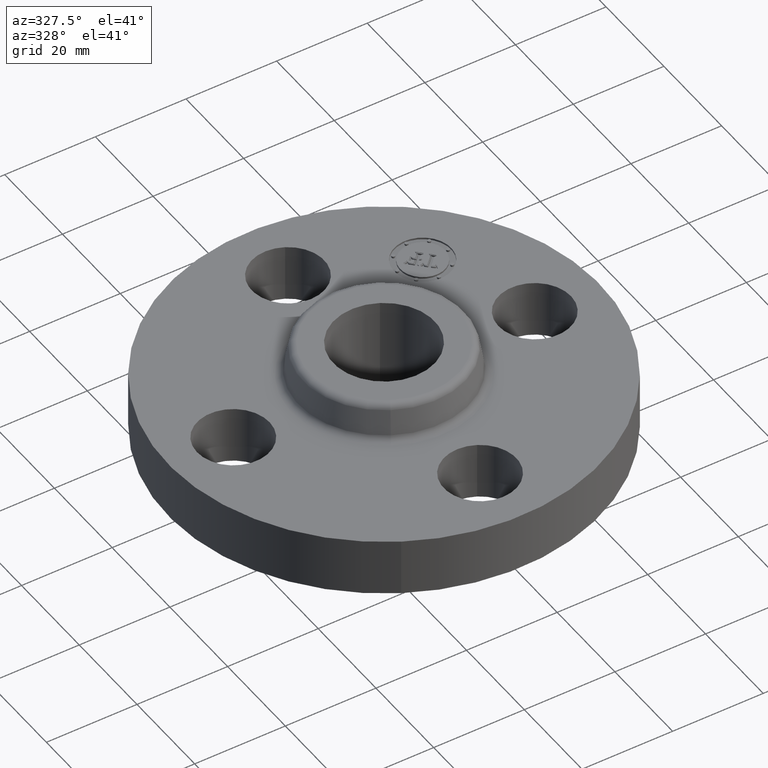
[diagram: clean part render]
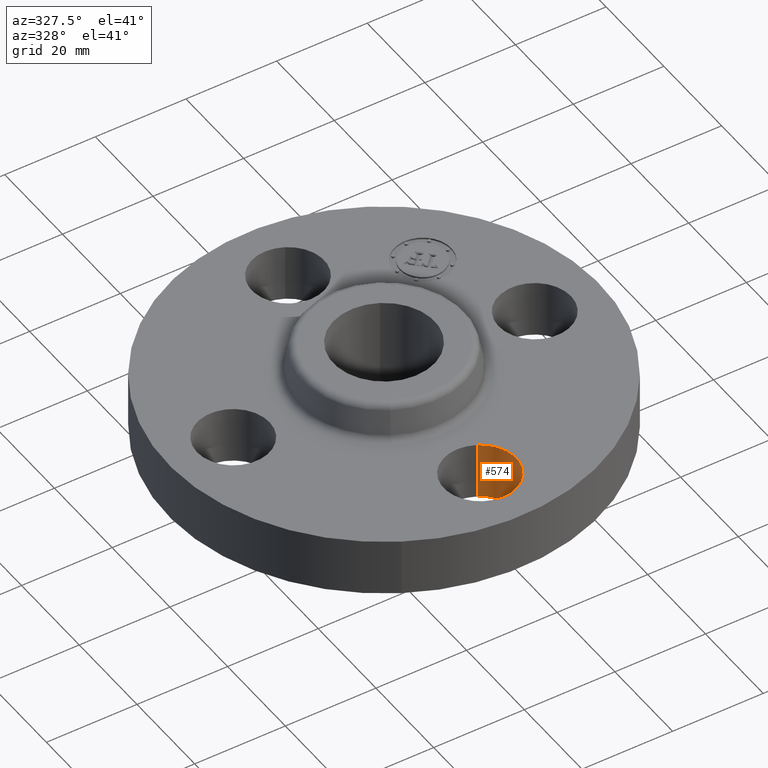
[diagram: same view with one face highlighted and labeled with its STEP entity id]
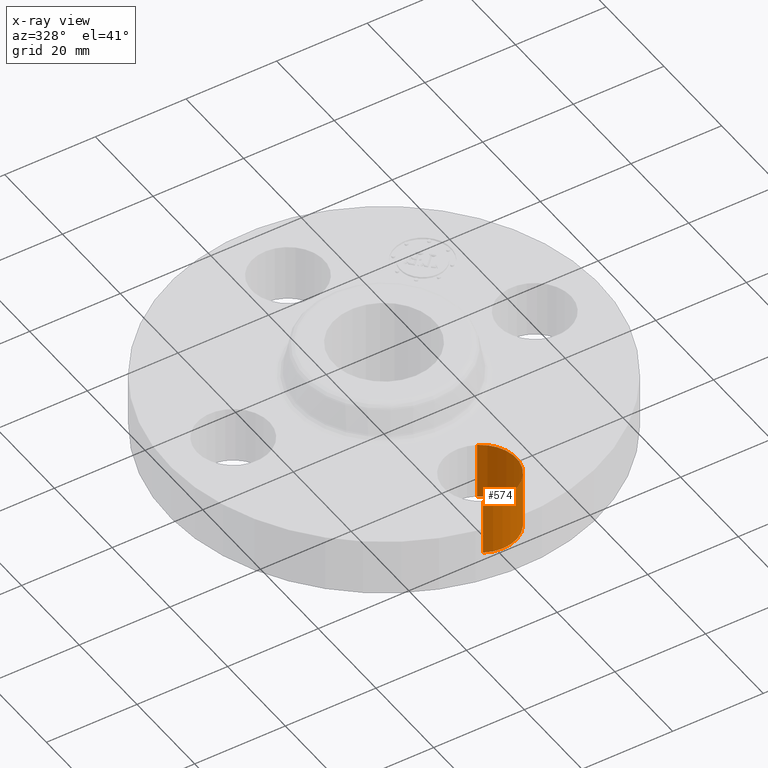
[diagram: x-ray of the same camera — body ghosted, the highlighted face saturated]
A machine part, auxiliary view. The second image highlights one B-rep face of the part: STEP entity #574.
The next image is the same camera in x-ray: the body ghosted, the highlighted face saturated — about 0% of this face is hidden behind the body in this view.
In plain terms, the highlighted cylindrical surface (partial cylindrical patch) has radius 8.001 mm, axis along (0, -0, -1).
Its self-contained STEP definition (entity closure, byte-faithful):
#405=AXIS2_PLACEMENT_3D('Circle Axis2P3D',#403,#404,$) ;
#547=AXIS2_PLACEMENT_3D('Cylinder Axis2P3D',#544,#545,#546) ;
#565=AXIS2_PLACEMENT_3D('Circle Axis2P3D',#563,#564,$) ;
#403=CARTESIAN_POINT('Axis2P3D Location',(-1.04902962957E-016,-1.31000000001,0.)) ;
#407=CARTESIAN_POINT('Vertex',(0.151019044661,-1.03356149301,0.)) ;
#409=CARTESIAN_POINT('Vertex',(-0.151019044661,-1.586438507,0.)) ;
#544=CARTESIAN_POINT('Axis2P3D Location',(-1.99526869207E-016,-1.31000000001,0.496062992128)) ;
#549=CARTESIAN_POINT('Line Origine',(0.151019044661,-1.03356149301,0.250000000001)) ;
#553=CARTESIAN_POINT('Vertex',(0.151019044661,-1.03356149301,0.500000000002)) ;
#556=CARTESIAN_POINT('Line Origine',(-0.151019044661,-1.586438507,0.250000000001)) ;
#560=CARTESIAN_POINT('Vertex',(-0.151019044661,-1.586438507,0.500000000002)) ;
#563=CARTESIAN_POINT('Axis2P3D Location',(-1.99526869207E-016,-1.31000000001,0.500000000002)) ;
#404=DIRECTION('Axis2P3D Direction',(0.,0.,-0.0393700787402)) ;
#545=DIRECTION('Axis2P3D Direction',(0.,-0.,-0.0393700787402)) ;
#546=DIRECTION('Axis2P3D XDirection',(-0.0188750212049,-0.0345504945626,0.)) ;
#550=DIRECTION('Vector Direction',(0.,0.,-0.0393700787402)) ;
#557=DIRECTION('Vector Direction',(0.,0.,-0.0393700787402)) ;
#564=DIRECTION('Axis2P3D Direction',(0.,-0.,-0.0393700787402)) ;
#551=VECTOR('Line Direction',#550,0.0393700787402) ;
#558=VECTOR('Line Direction',#557,0.0393700787402) ;
#569=ORIENTED_EDGE('',*,*,#555,.F.) ;
#570=ORIENTED_EDGE('',*,*,#411,.T.) ;
#571=ORIENTED_EDGE('',*,*,#562,.T.) ;
#572=ORIENTED_EDGE('',*,*,#567,.F.) ;
#574=ADVANCED_FACE('PartBody',(#573),#548,.F.) ;
#406=CIRCLE('generated circle',#405,0.315000000001) ;
#566=CIRCLE('generated circle',#565,0.315000000001) ;
#548=CYLINDRICAL_SURFACE('generated cylinder',#547,0.315000000001) ;
#411=EDGE_CURVE('',#408,#410,#406,.T.) ;
#555=EDGE_CURVE('',#408,#554,#552,.F.) ;
#562=EDGE_CURVE('',#410,#561,#559,.F.) ;
#567=EDGE_CURVE('',#554,#561,#566,.T.) ;
#568=EDGE_LOOP('',(#569,#570,#571,#572)) ;
#573=FACE_OUTER_BOUND('',#568,.T.) ;
#552=LINE('Line',#549,#551) ;
#559=LINE('Line',#556,#558) ;
#408=VERTEX_POINT('',#407) ;
#410=VERTEX_POINT('',#409) ;
#554=VERTEX_POINT('',#553) ;
#561=VERTEX_POINT('',#560) ;